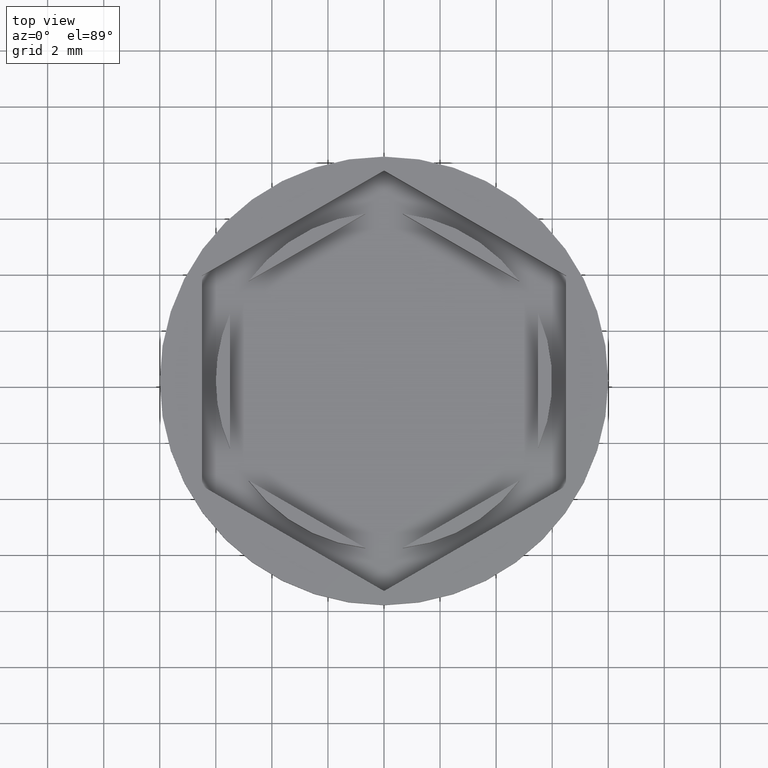
[diagram: clean part render]
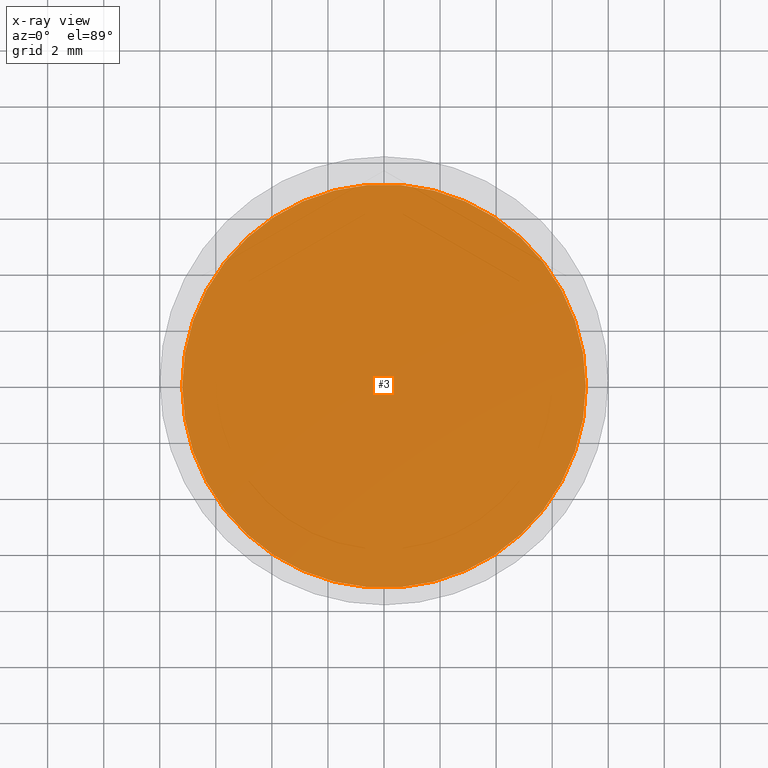
[diagram: x-ray — body ghosted, one internal face saturated and labeled with its STEP entity id]
A machine part, top view, then the same camera in x-ray: the body is ghosted and one INTERNAL B-rep face — a face not visible from any outside direction — is saturated and labeled: STEP entity #3.
In plain terms, the highlighted planar face has unit normal (0, 0, -1).
Its self-contained STEP definition (entity closure, byte-faithful):
#3 = ADVANCED_FACE ( 'NONE', ( #1641 ), #844, .F. ) ;
#149 = CARTESIAN_POINT ( 'NONE',  ( 0.000000000000000000, 0.000000000000000000, -11.00000000000000000 ) ) ;
#293 = EDGE_CURVE ( 'NONE', #1227, #596, #580, .T. ) ;
#298 = CARTESIAN_POINT ( 'NONE',  ( 0.000000000000000000, 0.000000000000000000, -11.00000000000000000 ) ) ;
#328 = DIRECTION ( 'NONE',  ( -1.000000000000000000, 0.000000000000000000, 0.000000000000000000 ) ) ;
#344 = EDGE_CURVE ( 'NONE', #596, #1227, #873, .T. ) ;
#395 = CARTESIAN_POINT ( 'NONE',  ( 0.000000000000000000, 0.000000000000000000, -11.00000000000000000 ) ) ;
#454 = CARTESIAN_POINT ( 'NONE',  ( -7.200000000000001954, 0.000000000000000000, -11.00000000000000000 ) ) ;
#580 = CIRCLE ( 'NONE', #1791, 7.200000000000001954 ) ;
#596 = VERTEX_POINT ( 'NONE', #1853 ) ;
#762 = DIRECTION ( 'NONE',  ( -0.000000000000000000, -0.000000000000000000, 1.000000000000000000 ) ) ;
#769 = DIRECTION ( 'NONE',  ( -1.000000000000000000, 0.000000000000000000, 0.000000000000000000 ) ) ;
#796 = AXIS2_PLACEMENT_3D ( 'NONE', #395, #1342, #826 ) ;
#826 = DIRECTION ( 'NONE',  ( -1.000000000000000000, 0.000000000000000000, -0.000000000000000000 ) ) ;
#844 = PLANE ( 'NONE',  #796 ) ;
#865 = EDGE_LOOP ( 'NONE', ( #1338, #1148 ) ) ;
#873 = CIRCLE ( 'NONE', #1102, 7.200000000000001954 ) ;
#1102 = AXIS2_PLACEMENT_3D ( 'NONE', #149, #762, #328 ) ;
#1148 = ORIENTED_EDGE ( 'NONE', *, *, #344, .T. ) ;
#1227 = VERTEX_POINT ( 'NONE', #454 ) ;
#1338 = ORIENTED_EDGE ( 'NONE', *, *, #293, .T. ) ;
#1342 = DIRECTION ( 'NONE',  ( 0.000000000000000000, 0.000000000000000000, -1.000000000000000000 ) ) ;
#1641 = FACE_OUTER_BOUND ( 'NONE', #865, .T. ) ;
#1697 = DIRECTION ( 'NONE',  ( -0.000000000000000000, -0.000000000000000000, 1.000000000000000000 ) ) ;
#1791 = AXIS2_PLACEMENT_3D ( 'NONE', #298, #1697, #769 ) ;
#1853 = CARTESIAN_POINT ( 'NONE',  ( 7.200000000000001954, 9.001153973733047589E-16, -11.00000000000000000 ) ) ;